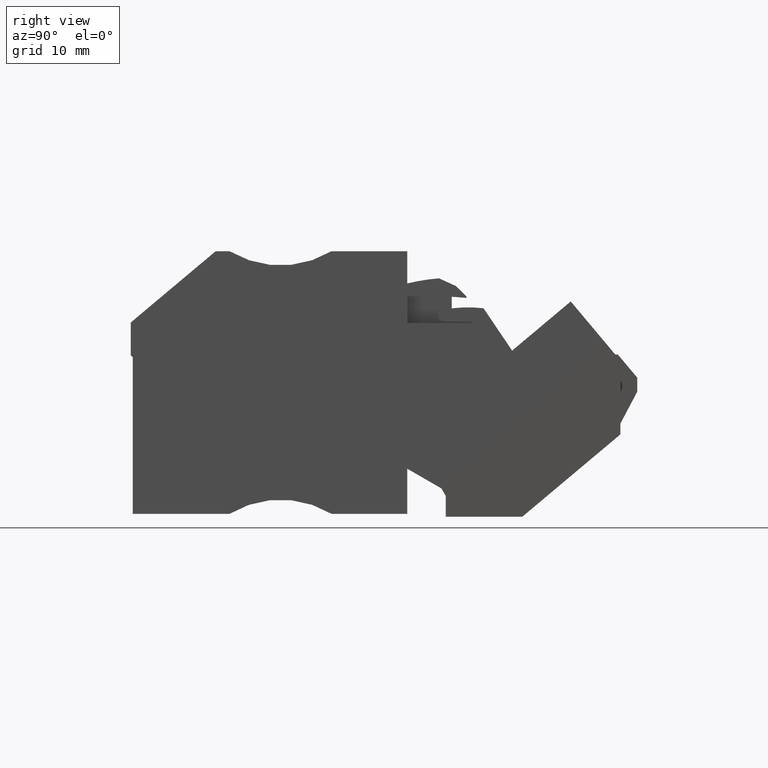
[diagram: clean part render]
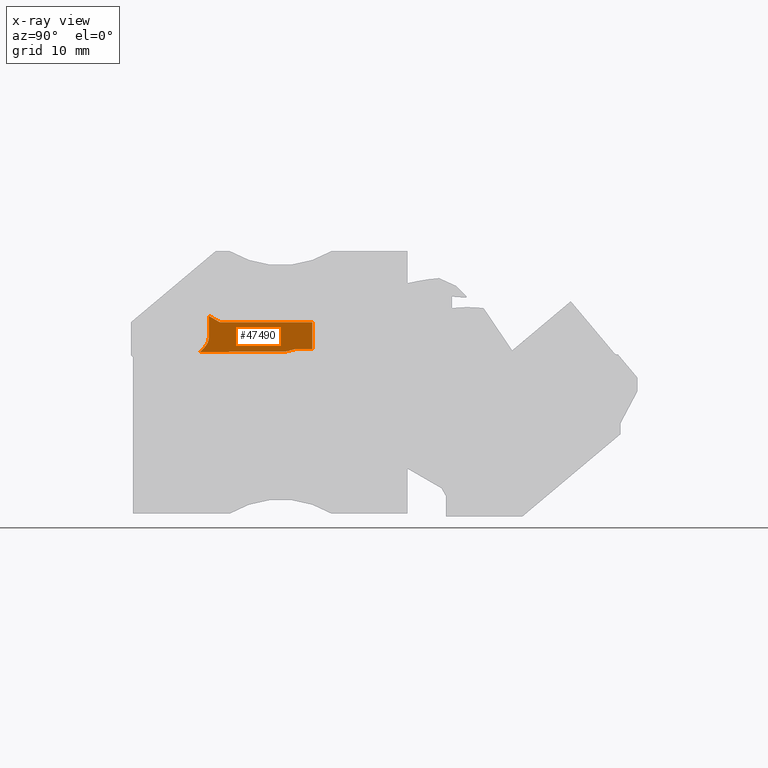
[diagram: x-ray — body ghosted, one internal face saturated and labeled with its STEP entity id]
A machine part, right view, then the same camera in x-ray: the body is ghosted and one INTERNAL B-rep face — a face not visible from any outside direction — is saturated and labeled: STEP entity #47490.
In plain terms, the highlighted planar face has unit normal (-1, 0, 0).
Its self-contained STEP definition (entity closure, byte-faithful):
#26280=CARTESIAN_POINT('',(429.278049218458,690.334347600579,
105.269999978106));
#26290=VERTEX_POINT('',#26280);
#26320=CARTESIAN_POINT('',(443.853666294858,681.919111131042,
105.269999981861));
#26330=DIRECTION('',(-0.866025403093094,0.500000001197445,
-2.23122558293731E-10));
#26340=VECTOR('',#26330,1.);
#26350=LINE('',#26320,#26340);
#26360=CARTESIAN_POINT('',(428.152196888297,690.98435874854,
105.269999977888));
#26370=VERTEX_POINT('',#26360);
#26380=EDGE_CURVE('',#26290,#26370,#26350,.T.);
#46220=CARTESIAN_POINT('',(439.003158791152,695.383861726981,
105.269999976866));
#46230=DIRECTION('',(5.48619395602313E-11,-3.51221505597609E-10,-1.));
#46240=DIRECTION('',(-1.32734873092824E-9,-1.,3.51221505524789E-10));
#46250=AXIS2_PLACEMENT_3D('',#46220,#46230,#46240);
#46260=PLANE('',#46250);
#46270=CARTESIAN_POINT('',(438.648616181191,676.714061031685,
105.269999983403));
#46280=DIRECTION('',(5.59150170609455E-10,-1.,3.51221513140156E-10));
#46290=VECTOR('',#46280,1.);
#46300=LINE('',#46270,#46290);
#46310=CARTESIAN_POINT('',(438.648616173576,690.334347598383,
105.26999997862));
#46320=VERTEX_POINT('',#46310);
#46330=CARTESIAN_POINT('',(438.648616175085,687.634358930644,
105.269999979565));
#46340=VERTEX_POINT('',#46330);
#46350=EDGE_CURVE('',#46320,#46340,#46300,.T.);
#46360=ORIENTED_EDGE('',*,*,#46350,.F.);
#46370=CARTESIAN_POINT('',(449.568914090957,687.634358911428,
105.269999980167));
#46380=DIRECTION('',(1.,-1.75962394655114E-9,5.48619612102419E-11));
#46390=VECTOR('',#46380,1.);
#46400=LINE('',#46370,#46390);
#46410=CARTESIAN_POINT('',(437.00473001274,687.634358933536,
105.269999979478));
#46420=VERTEX_POINT('',#46410);
#46430=EDGE_CURVE('',#46420,#46340,#46400,.T.);
#46440=ORIENTED_EDGE('',*,*,#46430,.T.);
#46450=CARTESIAN_POINT('',(423.016914987735,683.886335220991,
105.269999980027));
#46460=DIRECTION('',(0.965925826756713,0.258819043357248,
-3.79102048216828E-11));
#46470=VECTOR('',#46460,1.);
#46480=LINE('',#46450,#46470);
#46490=CARTESIAN_POINT('',(436.068013269142,687.383366440553,
105.269999979517));
#46500=VERTEX_POINT('',#46490);
#46510=EDGE_CURVE('',#46500,#46420,#46480,.T.);
#46520=ORIENTED_EDGE('',*,*,#46510,.T.);
#46530=CARTESIAN_POINT('',(419.663047710368,687.240202507578,
105.269999978665));
#46540=DIRECTION('',(0.999961923081495,0.00872653351327912,
5.17949545808724E-11));
#46550=VECTOR('',#46540,1.);
#46560=LINE('',#46530,#46550);
#46570=CARTESIAN_POINT('',(427.230390917687,687.306241696252,
105.269999979057));
#46580=VERTEX_POINT('',#46570);
#46590=EDGE_CURVE('',#46580,#46500,#46560,.T.);
#46600=ORIENTED_EDGE('',*,*,#46590,.T.);
#46610=CARTESIAN_POINT('',(428.516102327632,688.734358747614,
106.919999980095));
#46620=DIRECTION('',(-1.,1.98497844528632E-9,-5.36928806118182E-11));
#46630=DIRECTION('',(-1.98495192504897E-9,-1.,4.42871223279918E-10));
#46640=AXIS2_PLACEMENT_3D('',#46610,#46620,#46630);
#46650=CONICAL_SURFACE('',#46640,1.4398990952349,0.52359877559829);
#46660=CARTESIAN_POINT('',(427.230390917812,687.306241696379,
105.269999979057));
#46670=CARTESIAN_POINT('',(427.26968742394,687.340909396849,
105.269999979047));
#46680=CARTESIAN_POINT('',(427.308660571794,687.376011371572,
105.269999979037));
#46690=CARTESIAN_POINT('',(427.347205618571,687.411589688705,
105.269999979026));
#46700=CARTESIAN_POINT('',(427.385750733946,687.447168069156,
105.269999979016));
#46710=CARTESIAN_POINT('',(427.423868613087,687.483222903401,
105.269999979005));
#46720=CARTESIAN_POINT('',(427.461441350186,687.519816128188,
105.269999978994));
#46730=CARTESIAN_POINT('',(427.499014082486,687.5564093483,
105.269999978984));
#46740=CARTESIAN_POINT('',(427.536043209132,687.593541429696,
105.269999978973));
#46750=CARTESIAN_POINT('',(427.57238937553,687.631299104177,
105.269999978961));
#46760=CARTESIAN_POINT('',(427.59056252904,687.650178014459,
105.269999978956));
#46770=CARTESIAN_POINT('',(427.60856469665,687.669213897636,
105.26999997895));
#46780=CARTESIAN_POINT('',(427.62637547772,687.688420393788,
105.269999978944));
#46790=CARTESIAN_POINT('',(427.644186244248,687.707626874257,
105.269999978938));
#46800=CARTESIAN_POINT('',(427.661805725803,687.727004020623,
105.269999978946));
#46810=CARTESIAN_POINT('',(427.679210677453,687.746567407247,
105.26999997894));
#46820=B_SPLINE_CURVE_WITH_KNOTS('',3,(#46660,#46670,#46680,#46690,
#46700,#46710,#46720,#46730,#46740,#46750,#46760,#46770,#46780,#46790,
#46800,#46810),.UNSPECIFIED.,.F.,.F.,(4,3,3,3,3,4),(0.,0.157305173026734
,0.314671771744307,0.471961512916199,0.550558712877152,0.629126215701105
),.UNSPECIFIED.);
#46830=SURFACE_CURVE('',#46820,(#46650,#46260),.CURVE_3D.);
#46840=CARTESIAN_POINT('',(427.679210677752,687.746567407651,
105.269999978927));
#46850=VERTEX_POINT('',#46840);
#46860=EDGE_CURVE('',#46580,#46850,#46830,.T.);
#46870=ORIENTED_EDGE('',*,*,#46860,.F.);
#46880=CARTESIAN_POINT('',(428.152196883405,688.734358747601,
105.269999978606));
#46890=CARTESIAN_POINT('',(428.152196883355,688.711141777512,
105.269999978614));
#46900=CARTESIAN_POINT('',(428.15134770694,688.68791587418,
105.269999978622));
#46910=CARTESIAN_POINT('',(428.149649962322,688.664683082001,
105.26999997863));
#46920=CARTESIAN_POINT('',(428.147952564086,688.641455029878,
105.269999978638));
#46930=CARTESIAN_POINT('',(428.145406947822,688.618241444584,
105.269999978646));
#46940=CARTESIAN_POINT('',(428.142037665722,688.595109647108,
105.269999978654));
#46950=CARTESIAN_POINT('',(428.138668415206,688.571978066482,
105.269999978662));
#46960=CARTESIAN_POINT('',(428.134475920208,688.54893073355,
105.269999978671));
#46970=CARTESIAN_POINT('',(428.12950890956,688.526036938084,
105.269999978679));
#46980=CARTESIAN_POINT('',(428.124541905798,688.503143174358,
105.269999978687));
#46990=CARTESIAN_POINT('',(428.118801071374,688.480404895076,
105.269999978695));
#47000=CARTESIAN_POINT('',(428.112355607024,688.45788644443,
105.269999978703));
#47010=CARTESIAN_POINT('',(428.105910113133,688.435367890575,
105.26999997871));
#47020=CARTESIAN_POINT('',(428.098760730952,688.413070487836,
105.269999978716));
#47030=CARTESIAN_POINT('',(428.090991232182,688.391049649902,
105.269999978724));
#47040=CARTESIAN_POINT('',(428.083221552454,688.369028299083,
105.269999978731));
#47050=CARTESIAN_POINT('',(428.074832938746,688.347285617086,
105.269999978737));
#47060=CARTESIAN_POINT('',(428.065915769929,688.325862634234,
105.269999978744));
#47070=CARTESIAN_POINT('',(428.056995441464,688.30443206051,
105.269999978752));
#47080=CARTESIAN_POINT('',(428.047512923049,688.283239194149,
105.269999978758));
#47090=CARTESIAN_POINT('',(428.037525100049,688.2622758159,
105.269999978765));
#47100=CARTESIAN_POINT('',(428.027537236961,688.241312353507,
105.269999978772));
#47110=CARTESIAN_POINT('',(428.017043971585,688.220578116422,
105.269999978779));
#47120=CARTESIAN_POINT('',(428.006097948572,688.200064053853,
105.269999978785));
#47130=CARTESIAN_POINT('',(427.995151897765,688.179549939194,
105.269999978792));
#47140=CARTESIAN_POINT('',(427.983752968306,688.159255774124,
105.269999978798));
#47150=CARTESIAN_POINT('',(427.971949899165,688.13917282386,
105.269999978805));
#47160=CARTESIAN_POINT('',(427.960146814805,688.119089847702,
105.269999978811));
#47170=CARTESIAN_POINT('',(427.947939468415,688.099217909195,
105.269999978818));
#47180=CARTESIAN_POINT('',(427.935373263609,688.07954938401,
105.269999978824));
#47190=CARTESIAN_POINT('',(427.910241150534,688.04021279778,
105.269999978836));
#47200=CARTESIAN_POINT('',(427.883674531259,688.001686336188,
105.269999978848));
#47210=CARTESIAN_POINT('',(427.856007573315,687.963930862775,
105.26999997886));
#47220=CARTESIAN_POINT('',(427.828340678126,687.926175474999,
105.269999978872));
#47230=CARTESIAN_POINT('',(427.799571015753,687.889188983744,
105.269999978883));
#47240=CARTESIAN_POINT('',(427.770005844171,687.852961152844,
105.269999978894));
#47250=CARTESIAN_POINT('',(427.740440830146,687.816733515007,
105.269999978905));
#47260=CARTESIAN_POINT('',(427.710078894151,687.78126367479,
105.269999978916));
#47270=CARTESIAN_POINT('',(427.679210677752,687.746567407651,
105.269999978927));
#47280=B_SPLINE_CURVE_WITH_KNOTS('',3,(#46880,#46890,#46900,#46910,
#46920,#46930,#46940,#46950,#46960,#46970,#46980,#46990,#47000,#47010,
#47020,#47030,#47040,#47050,#47060,#47070,#47080,#47090,#47100,#47110,
#47120,#47130,#47140,#47150,#47160,#47170,#47180,#47190,#47200,#47210,
#47220,#47230,#47240,#47250,#47260,#47270),.UNSPECIFIED.,.F.,.F.,(4,3,3,
3,3,3,3,3,3,3,3,3,3,4),(0.,0.0697376606873955,0.139741293086805,
0.209955002738102,0.280243491824855,0.350422486854631,0.420274949246232,
0.489919273095729,0.559624427119164,0.629442190659252,0.699394809882371,
0.839656142115988,0.980066359932378,1.11994613163965),.UNSPECIFIED.);
#47290=SURFACE_CURVE('',#47280,(#46260,#46650),.CURVE_3D.);
#47300=CARTESIAN_POINT('',(428.152196883365,688.734358747603,
105.269999978606));
#47310=VERTEX_POINT('',#47300);
#47320=EDGE_CURVE('',#47310,#46850,#47290,.T.);
#47330=ORIENTED_EDGE('',*,*,#47320,.T.);
#47340=CARTESIAN_POINT('',(428.152196913645,702.907704944967,
105.269999973628));
#47350=DIRECTION('',(2.13640555246622E-9,1.,-3.51221506101979E-10));
#47360=VECTOR('',#47350,1.);
#47370=LINE('',#47340,#47360);
#47380=EDGE_CURVE('',#47310,#26370,#47370,.T.);
#47390=ORIENTED_EDGE('',*,*,#47380,.F.);
#47400=ORIENTED_EDGE('',*,*,#26380,.T.);
#47410=CARTESIAN_POINT('',(416.568902622896,690.334347603557,
105.269999977408));
#47420=DIRECTION('',(1.,-2.34350927552617E-10,5.48619602860575E-11));
#47430=VECTOR('',#47420,1.);
#47440=LINE('',#47410,#47430);
#47450=EDGE_CURVE('',#26290,#46320,#47440,.T.);
#47460=ORIENTED_EDGE('',*,*,#47450,.F.);
#47470=EDGE_LOOP('',(#47460,#47400,#47390,#47330,#46870,#46600,#46520,
#46440,#46360));
#47480=FACE_OUTER_BOUND('',#47470,.T.);
#47490=ADVANCED_FACE('',(#47480),#46260,.F.);